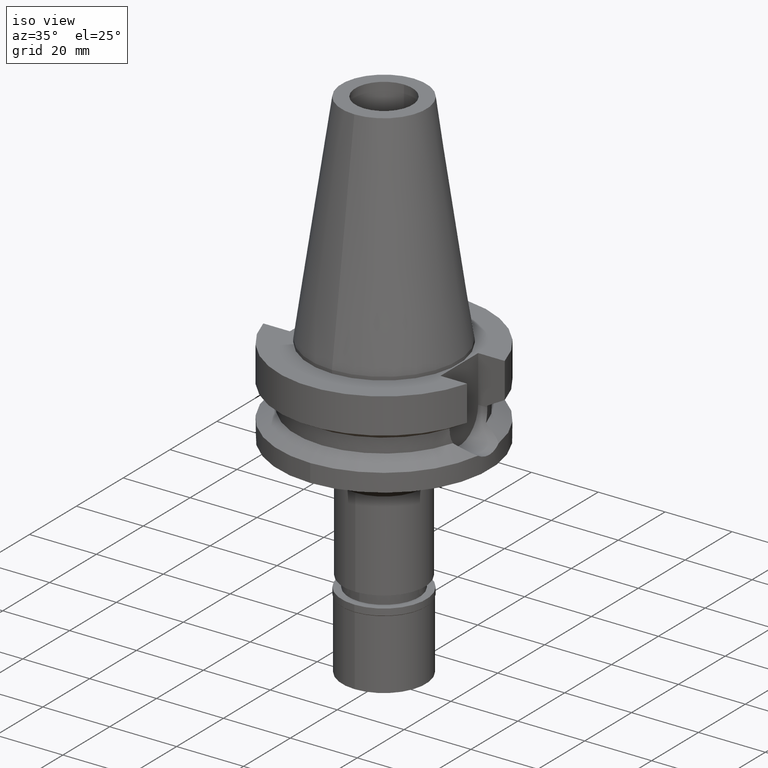
[diagram: clean part render]
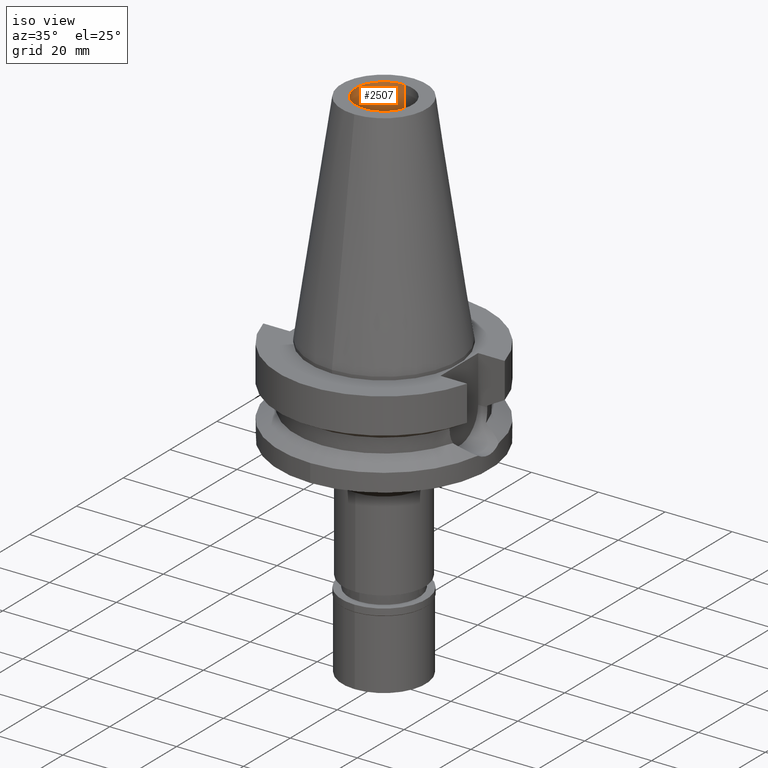
[diagram: same view with one face highlighted and labeled with its STEP entity id]
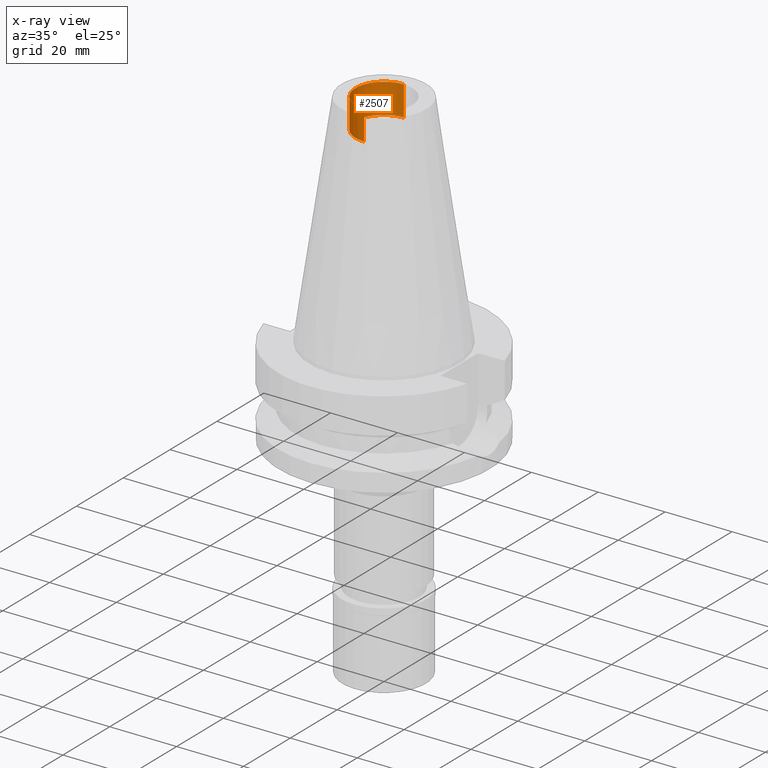
[diagram: x-ray of the same camera — body ghosted, the highlighted face saturated]
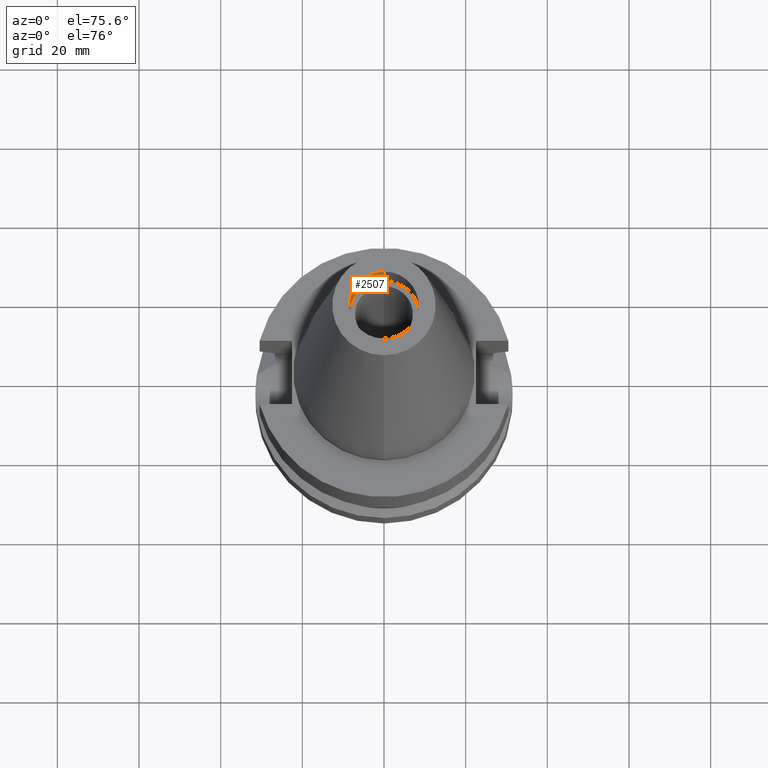
[diagram: same view with one face highlighted and labeled with its STEP entity id]
A machine part, iso view. The second image highlights one B-rep face of the part: STEP entity #2507.
The next image is the same camera in x-ray: the body ghosted, the highlighted face saturated — about 3% of this face is hidden behind the body in this view.
A second angle (auxiliary view) of the same face is appended — the face is thin or edge-on in the first view.
In plain terms, the highlighted cylindrical surface (edge-blend (fillet) strip) has radius 8.5 mm, axis along (0, 0, -1).
Its self-contained STEP definition (entity closure, byte-faithful):
#121 = DIRECTION ( 'NONE',  ( 0.0000000000000000000, -1.000000000000000000, 0.0000000000000000000 ) ) ;
#151 = EDGE_CURVE ( 'NONE', #916, #2632, #2418, .T. ) ;
#172 = EDGE_CURVE ( 'NONE', #3105, #2632, #1889, .T. ) ;
#262 = ORIENTED_EDGE ( 'NONE', *, *, #172, .F. ) ;
#458 = CARTESIAN_POINT ( 'NONE',  ( 0.0000000000000000000, 8.500000000000000000, 65.40000000000000568 ) ) ;
#795 = CARTESIAN_POINT ( 'NONE',  ( 0.0000000000000000000, 0.0000000000000000000, 56.39999999999999858 ) ) ;
#830 = CARTESIAN_POINT ( 'NONE',  ( 0.0000000000000000000, 0.0000000000000000000, 0.0000000000000000000 ) ) ;
#916 = VERTEX_POINT ( 'NONE', #458 ) ;
#1090 = VERTEX_POINT ( 'NONE', #1561 ) ;
#1125 = AXIS2_PLACEMENT_3D ( 'NONE', #830, #1497, #1746 ) ;
#1139 = LINE ( 'NONE', #1646, #2415 ) ;
#1470 = EDGE_LOOP ( 'NONE', ( #2380, #262, #2642, #1979 ) ) ;
#1497 = DIRECTION ( 'NONE',  ( 0.0000000000000000000, 0.0000000000000000000, -1.000000000000000000 ) ) ;
#1561 = CARTESIAN_POINT ( 'NONE',  ( 0.0000000000000000000, 8.500000000000000000, 56.39999999999999858 ) ) ;
#1646 = CARTESIAN_POINT ( 'NONE',  ( 0.0000000000000000000, 8.500000000000000000, 56.39999999999999858 ) ) ;
#1668 = DIRECTION ( 'NONE',  ( 0.0000000000000000000, 1.000000000000000000, 0.0000000000000000000 ) ) ;
#1746 = DIRECTION ( 'NONE',  ( 0.0000000000000000000, -1.000000000000000000, 0.0000000000000000000 ) ) ;
#1819 = VECTOR ( 'NONE', #3098, 1000.000000000000000 ) ;
#1877 = CARTESIAN_POINT ( 'NONE',  ( 0.0000000000000000000, -8.500000000000000000, 65.40000000000000568 ) ) ;
#1889 = LINE ( 'NONE', #2134, #1819 ) ;
#1933 = DIRECTION ( 'NONE',  ( 0.0000000000000000000, 0.0000000000000000000, 1.000000000000000000 ) ) ;
#1937 = CIRCLE ( 'NONE', #2287, 8.500000000000000000 ) ;
#1979 = ORIENTED_EDGE ( 'NONE', *, *, #2118, .T. ) ;
#2029 = CYLINDRICAL_SURFACE ( 'NONE', #1125, 8.500000000000000000 ) ;
#2118 = EDGE_CURVE ( 'NONE', #1090, #916, #1139, .T. ) ;
#2134 = CARTESIAN_POINT ( 'NONE',  ( 0.0000000000000000000, -8.500000000000000000, 56.39999999999999858 ) ) ;
#2218 = FACE_OUTER_BOUND ( 'NONE', #1470, .T. ) ;
#2280 = DIRECTION ( 'NONE',  ( 0.0000000000000000000, 0.0000000000000000000, -1.000000000000000000 ) ) ;
#2287 = AXIS2_PLACEMENT_3D ( 'NONE', #795, #2280, #121 ) ;
#2380 = ORIENTED_EDGE ( 'NONE', *, *, #151, .T. ) ;
#2415 = VECTOR ( 'NONE', #1933, 1000.000000000000000 ) ;
#2418 = CIRCLE ( 'NONE', #2667, 8.500000000000000000 ) ;
#2450 = CARTESIAN_POINT ( 'NONE',  ( 0.0000000000000000000, -8.500000000000000000, 56.39999999999999858 ) ) ;
#2507 = ADVANCED_FACE ( 'NONE', ( #2218 ), #2029, .F. ) ;
#2544 = EDGE_CURVE ( 'NONE', #3105, #1090, #1937, .T. ) ;
#2632 = VERTEX_POINT ( 'NONE', #1877 ) ;
#2642 = ORIENTED_EDGE ( 'NONE', *, *, #2544, .T. ) ;
#2667 = AXIS2_PLACEMENT_3D ( 'NONE', #3065, #3081, #1668 ) ;
#3065 = CARTESIAN_POINT ( 'NONE',  ( 0.0000000000000000000, 0.0000000000000000000, 65.40000000000000568 ) ) ;
#3081 = DIRECTION ( 'NONE',  ( 0.0000000000000000000, 0.0000000000000000000, 1.000000000000000000 ) ) ;
#3098 = DIRECTION ( 'NONE',  ( 0.0000000000000000000, 0.0000000000000000000, 1.000000000000000000 ) ) ;
#3105 = VERTEX_POINT ( 'NONE', #2450 ) ;